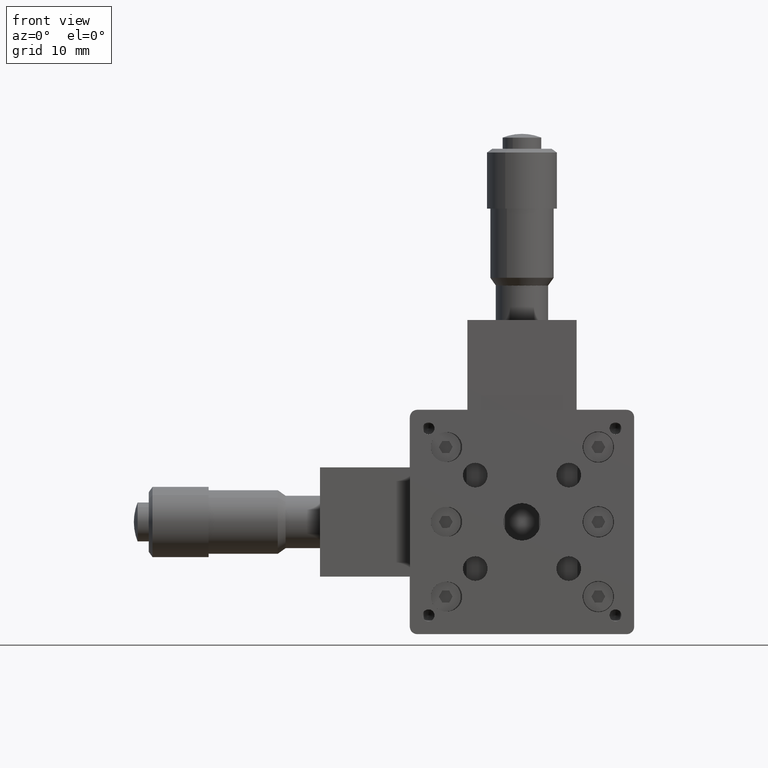
[diagram: clean part render]
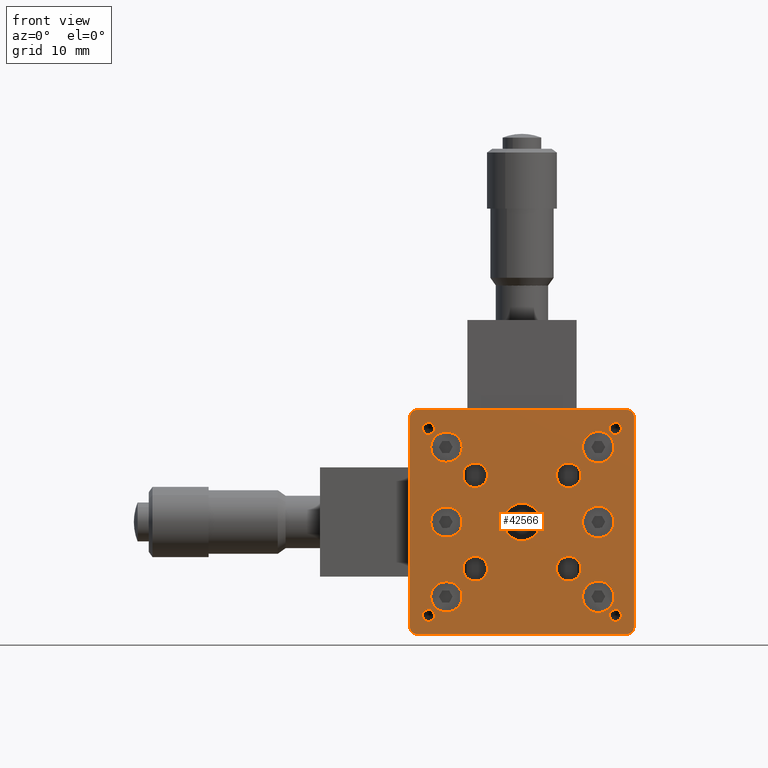
[diagram: same view with one face highlighted and labeled with its STEP entity id]
A machine part, front view. The second image highlights one B-rep face of the part: STEP entity #42566.
In plain terms, the highlighted planar face has unit normal (0, 1, -0).
Its self-contained STEP definition (entity closure, byte-faithful):
#23 = EDGE_LOOP ( 'NONE', ( #45067, #16349, #40978, #1449, #48845 ) ) ;
#196 = VERTEX_POINT ( 'NONE', #55357 ) ;
#272 = ORIENTED_EDGE ( 'NONE', *, *, #17197, .F. ) ;
#352 = CIRCLE ( 'NONE', #31244, 2.000000000000001800 ) ;
#366 = DIRECTION ( 'NONE',  ( -0.9996907414091207300, 3.995566843021196200E-015, 0.02486808277456444400 ) ) ;
#411 = CIRCLE ( 'NONE', #49605, 2.100000000000001000 ) ;
#438 = CIRCLE ( 'NONE', #27178, 0.7999999999999899400 ) ;
#726 = DIRECTION ( 'NONE',  ( 1.000000000000000000, -4.112451120382344100E-015, 0.0000000000000000000 ) ) ;
#735 = AXIS2_PLACEMENT_3D ( 'NONE', #38163, #33593, #25207 ) ;
#856 = VECTOR ( 'NONE', #366, 1000.000000000000000 ) ;
#954 = CIRCLE ( 'NONE', #47983, 1.649999999999989900 ) ;
#995 = ORIENTED_EDGE ( 'NONE', *, *, #34693, .F. ) ;
#1033 = VERTEX_POINT ( 'NONE', #40115 ) ;
#1141 = VERTEX_POINT ( 'NONE', #36163 ) ;
#1396 = VERTEX_POINT ( 'NONE', #52700 ) ;
#1406 = EDGE_CURVE ( 'NONE', #50541, #23847, #4537, .T. ) ;
#1449 = ORIENTED_EDGE ( 'NONE', *, *, #32207, .F. ) ;
#1508 = CARTESIAN_POINT ( 'NONE',  ( -9.800992561957983200, -6.245004513516505500E-014, 8.009925619580030800 ) ) ;
#1532 = CARTESIAN_POINT ( 'NONE',  ( -13.99999999999998000, -4.683753385137379200E-014, -15.00000000000001400 ) ) ;
#1822 = EDGE_CURVE ( 'NONE', #39451, #21439, #31661, .T. ) ;
#1902 = AXIS2_PLACEMENT_3D ( 'NONE', #51779, #4389, #48174 ) ;
#2013 = VERTEX_POINT ( 'NONE', #27249 ) ;
#2101 = CIRCLE ( 'NONE', #9898, 2.100000000000001000 ) ;
#2462 = LINE ( 'NONE', #4999, #51850 ) ;
#2536 = CARTESIAN_POINT ( 'NONE',  ( 6.250000000000034600, -1.162264728904460800E-013, 6.250000000000007100 ) ) ;
#2753 = DIRECTION ( 'NONE',  ( 2.664535259100375700E-015, -1.000000000000000000, 2.667395143078008400E-029 ) ) ;
#2771 = VECTOR ( 'NONE', #16659, 1000.000000000000000 ) ;
#2876 = EDGE_CURVE ( 'NONE', #1033, #6352, #48559, .T. ) ;
#3043 = CIRCLE ( 'NONE', #48805, 1.649999999999989900 ) ;
#3252 = CARTESIAN_POINT ( 'NONE',  ( -13.99999999999997900, -4.683753385137379200E-014, 14.00000000000001200 ) ) ;
#3683 = DIRECTION ( 'NONE',  ( 2.548887027368588000E-015, -1.000000000000000000, 2.667475390159024300E-029 ) ) ;
#3958 = CIRCLE ( 'NONE', #19397, 0.7999999999999899400 ) ;
#3985 = EDGE_LOOP ( 'NONE', ( #39808, #20516 ) ) ;
#4084 = DIRECTION ( 'NONE',  ( -1.000000000000000000, 4.112451120382349600E-015, 0.0000000000000000000 ) ) ;
#4190 = EDGE_CURVE ( 'NONE', #13506, #46286, #13105, .T. ) ;
#4195 = CARTESIAN_POINT ( 'NONE',  ( -10.19999999999998000, -6.245004513516505500E-014, 2.000000000000000900 ) ) ;
#4255 = DIRECTION ( 'NONE',  ( 2.548887027368588000E-015, -1.000000000000000000, 2.667475390159024300E-029 ) ) ;
#4389 = DIRECTION ( 'NONE',  ( 2.664535259100375700E-015, -1.000000000000000000, 2.667395143078008400E-029 ) ) ;
#4422 = CARTESIAN_POINT ( 'NONE',  ( -10.19999999999998000, -6.245004513516505500E-014, 10.00000000000000700 ) ) ;
#4537 = CIRCLE ( 'NONE', #18136, 2.499999999999990700 ) ;
#4693 = CARTESIAN_POINT ( 'NONE',  ( 14.00000000000004600, -1.474514954580286000E-013, -15.00000000000001400 ) ) ;
#4711 = CIRCLE ( 'NONE', #52469, 2.000000000000001800 ) ;
#4780 = CIRCLE ( 'NONE', #31853, 2.000000000000001800 ) ;
#4999 = CARTESIAN_POINT ( 'NONE',  ( -10.19999999999997800, -6.245004513516505500E-014, 8.000000000000007100 ) ) ;
#5043 = CARTESIAN_POINT ( 'NONE',  ( -13.99999999999998000, -4.683753385137379200E-014, -14.00000000000001200 ) ) ;
#5186 = EDGE_CURVE ( 'NONE', #43301, #45183, #21839, .T. ) ;
#5297 = ORIENTED_EDGE ( 'NONE', *, *, #7983, .F. ) ;
#5665 = PLANE ( 'NONE',  #5816 ) ;
#5816 = AXIS2_PLACEMENT_3D ( 'NONE', #45084, #36807, #40395 ) ;
#5841 = EDGE_CURVE ( 'NONE', #35988, #42162, #27684, .T. ) ;
#6248 = AXIS2_PLACEMENT_3D ( 'NONE', #39551, #26638, #48415 ) ;
#6352 = VERTEX_POINT ( 'NONE', #20278 ) ;
#6373 = LINE ( 'NONE', #18012, #33554 ) ;
#6412 = CARTESIAN_POINT ( 'NONE',  ( -10.19999999999998000, -6.245004513516505500E-014, 10.00000000000000700 ) ) ;
#6444 = ORIENTED_EDGE ( 'NONE', *, *, #55565, .F. ) ;
#6822 = EDGE_LOOP ( 'NONE', ( #23585, #50283 ) ) ;
#6891 = EDGE_CURVE ( 'NONE', #1141, #56171, #32955, .T. ) ;
#6967 = CIRCLE ( 'NONE', #20433, 0.7999999999999899400 ) ;
#7011 = FACE_BOUND ( 'NONE', #30240, .T. ) ;
#7107 = VERTEX_POINT ( 'NONE', #22316 ) ;
#7163 = ORIENTED_EDGE ( 'NONE', *, *, #38544, .F. ) ;
#7277 = CARTESIAN_POINT ( 'NONE',  ( -6.249999999999979600, -8.153200337090993300E-014, 6.250000000000007100 ) ) ;
#7292 = ORIENTED_EDGE ( 'NONE', *, *, #21866, .F. ) ;
#7471 = CARTESIAN_POINT ( 'NONE',  ( 10.20000000000003300, -1.318389841742373400E-013, 10.00000000000000700 ) ) ;
#7563 = EDGE_CURVE ( 'NONE', #42162, #55387, #2462, .T. ) ;
#7714 = EDGE_CURVE ( 'NONE', #21439, #39451, #411, .T. ) ;
#7822 = DIRECTION ( 'NONE',  ( 2.664535259100375700E-015, -1.000000000000000000, 2.667395143078008400E-029 ) ) ;
#7983 = EDGE_CURVE ( 'NONE', #53275, #13305, #6373, .T. ) ;
#8219 = VERTEX_POINT ( 'NONE', #50497 ) ;
#8342 = DIRECTION ( 'NONE',  ( 1.000000000000000000, -4.112451120382344100E-015, 0.0000000000000000000 ) ) ;
#8361 = FACE_BOUND ( 'NONE', #19133, .T. ) ;
#8735 = CIRCLE ( 'NONE', #26201, 2.000000000000001800 ) ;
#8902 = CARTESIAN_POINT ( 'NONE',  ( -10.19999999999998000, -6.245004513516505500E-014, -8.000000000000007100 ) ) ;
#8910 = CIRCLE ( 'NONE', #34159, 1.649999999999989900 ) ;
#9179 = VERTEX_POINT ( 'NONE', #27657 ) ;
#9440 = DIRECTION ( 'NONE',  ( 0.0000000000000000000, 2.988109489473547800E-029, -1.000000000000000000 ) ) ;
#9474 = EDGE_CURVE ( 'NONE', #48775, #17167, #27972, .T. ) ;
#9494 = DIRECTION ( 'NONE',  ( 2.664535259100375700E-015, -1.000000000000000000, 2.667395143078008400E-029 ) ) ;
#9533 = CARTESIAN_POINT ( 'NONE',  ( 14.00000000000004600, -1.474514954580286000E-013, -14.00000000000001200 ) ) ;
#9591 = CARTESIAN_POINT ( 'NONE',  ( -10.19999999999997800, -6.245004513516505500E-014, 12.00000000000001400 ) ) ;
#9709 = EDGE_LOOP ( 'NONE', ( #48722, #21597, #51011, #26748, #5297, #10655, #38330, #18675 ) ) ;
#9743 = VERTEX_POINT ( 'NONE', #32081 ) ;
#9898 = AXIS2_PLACEMENT_3D ( 'NONE', #53204, #35280, #14340 ) ;
#10001 = CIRCLE ( 'NONE', #25986, 1.649999999999989900 ) ;
#10059 = CARTESIAN_POINT ( 'NONE',  ( -12.49999999999999100, -5.030698080332739300E-014, 13.30000000000000400 ) ) ;
#10262 = DIRECTION ( 'NONE',  ( 2.664535259100375700E-015, -1.000000000000000000, 2.667395143078008400E-029 ) ) ;
#10288 = DIRECTION ( 'NONE',  ( 2.664535259100375700E-015, -1.000000000000000000, 2.667395143078008400E-029 ) ) ;
#10328 = ORIENTED_EDGE ( 'NONE', *, *, #29114, .F. ) ;
#10464 = CARTESIAN_POINT ( 'NONE',  ( 10.20000000000003300, -1.318389841742373400E-013, 2.811140603990517100E-028 ) ) ;
#10655 = ORIENTED_EDGE ( 'NONE', *, *, #50415, .T. ) ;
#10662 = EDGE_CURVE ( 'NONE', #43990, #21821, #10867, .T. ) ;
#10849 = CARTESIAN_POINT ( 'NONE',  ( 2.847981924214951700E-014, -9.887923813067794100E-014, -2.499999999999990700 ) ) ;
#10867 = CIRCLE ( 'NONE', #28692, 2.100000000000001000 ) ;
#11051 = EDGE_CURVE ( 'NONE', #34521, #1033, #20314, .T. ) ;
#11091 = FACE_BOUND ( 'NONE', #23650, .T. ) ;
#11176 = VECTOR ( 'NONE', #45226, 1000.000000000000000 ) ;
#11364 = EDGE_CURVE ( 'NONE', #17167, #1141, #14856, .T. ) ;
#11379 = EDGE_LOOP ( 'NONE', ( #36898, #53904 ) ) ;
#11455 = EDGE_CURVE ( 'NONE', #45183, #35988, #8735, .T. ) ;
#11508 = ORIENTED_EDGE ( 'NONE', *, *, #4190, .F. ) ;
#11719 = DIRECTION ( 'NONE',  ( 2.548887027368588000E-015, -1.000000000000000000, 2.667475390159024300E-029 ) ) ;
#11839 = CARTESIAN_POINT ( 'NONE',  ( 12.50000000000003900, -1.474514954580286000E-013, 13.30000000000000400 ) ) ;
#12151 = CIRCLE ( 'NONE', #35390, 1.649999999999989900 ) ;
#12167 = AXIS2_PLACEMENT_3D ( 'NONE', #21132, #4255, #4084 ) ;
#12401 = VERTEX_POINT ( 'NONE', #47331 ) ;
#12635 = DIRECTION ( 'NONE',  ( 0.0000000000000000000, 2.347800313157772200E-029, -1.000000000000000000 ) ) ;
#12789 = CARTESIAN_POINT ( 'NONE',  ( 6.250000000000034600, -1.162264728904460200E-013, -7.899999999999997700 ) ) ;
#12882 = LINE ( 'NONE', #25769, #2771 ) ;
#13105 = CIRCLE ( 'NONE', #1902, 0.7999999999999899400 ) ;
#13287 = EDGE_CURVE ( 'NONE', #30116, #25152, #3043, .T. ) ;
#13305 = VERTEX_POINT ( 'NONE', #1532 ) ;
#13506 = VERTEX_POINT ( 'NONE', #11839 ) ;
#13961 = CARTESIAN_POINT ( 'NONE',  ( -6.249999999999979600, -8.153200337090993300E-014, -6.250000000000007100 ) ) ;
#14145 = CARTESIAN_POINT ( 'NONE',  ( 10.20000000000003300, -1.318389841742372900E-013, -2.100000000000001000 ) ) ;
#14340 = DIRECTION ( 'NONE',  ( 0.0000000000000000000, 2.347800313157772200E-029, -1.000000000000000000 ) ) ;
#14443 = VERTEX_POINT ( 'NONE', #10059 ) ;
#14639 = EDGE_CURVE ( 'NONE', #49934, #24780, #6967, .T. ) ;
#14816 = CIRCLE ( 'NONE', #18337, 2.100000000000001000 ) ;
#14856 = CIRCLE ( 'NONE', #47208, 2.000000000000001800 ) ;
#14867 = DIRECTION ( 'NONE',  ( 2.548887027368588000E-015, -1.000000000000000000, 2.667475390159024300E-029 ) ) ;
#15005 = DIRECTION ( 'NONE',  ( 0.0000000000000000000, 2.347800313157772200E-029, -1.000000000000000000 ) ) ;
#15055 = CIRCLE ( 'NONE', #31937, 0.7999999999999899400 ) ;
#15074 = CARTESIAN_POINT ( 'NONE',  ( -6.249999999999984900, -8.153200337090990800E-014, 7.899999999999995900 ) ) ;
#15515 = DIRECTION ( 'NONE',  ( 0.0000000000000000000, 3.081487911019616000E-029, -1.000000000000000000 ) ) ;
#15739 = CIRCLE ( 'NONE', #16753, 1.649999999999989900 ) ;
#15808 = FACE_BOUND ( 'NONE', #3985, .T. ) ;
#16172 = EDGE_LOOP ( 'NONE', ( #21312, #55836, #42716, #24135, #41372 ) ) ;
#16349 = ORIENTED_EDGE ( 'NONE', *, *, #37029, .F. ) ;
#16498 = VERTEX_POINT ( 'NONE', #39308 ) ;
#16659 = DIRECTION ( 'NONE',  ( 1.000000000000000000, -3.996802888650564300E-015, 7.133644514010314600E-030 ) ) ;
#16753 = AXIS2_PLACEMENT_3D ( 'NONE', #2536, #25030, #37418 ) ;
#17167 = VERTEX_POINT ( 'NONE', #49227 ) ;
#17197 = EDGE_CURVE ( 'NONE', #50565, #7107, #39338, .T. ) ;
#17220 = CARTESIAN_POINT ( 'NONE',  ( 10.20000000000003300, -1.318389841742372900E-013, 7.900000000000005700 ) ) ;
#17460 = DIRECTION ( 'NONE',  ( 2.548887027368588000E-015, -1.000000000000000000, 2.667475390159024300E-029 ) ) ;
#17753 = AXIS2_PLACEMENT_3D ( 'NONE', #19486, #23683, #18745 ) ;
#18012 = CARTESIAN_POINT ( 'NONE',  ( -14.99999999999998000, -3.295974604355933500E-014, -15.00000000000001400 ) ) ;
#18136 = AXIS2_PLACEMENT_3D ( 'NONE', #27508, #40043, #36260 ) ;
#18218 = VERTEX_POINT ( 'NONE', #15074 ) ;
#18337 = AXIS2_PLACEMENT_3D ( 'NONE', #7471, #25111, #28734 ) ;
#18458 = AXIS2_PLACEMENT_3D ( 'NONE', #43166, #38669, #12635 ) ;
#18653 = DIRECTION ( 'NONE',  ( -1.000000000000000000, 4.112451120382349600E-015, -7.136726001921331400E-030 ) ) ;
#18662 = CARTESIAN_POINT ( 'NONE',  ( -12.49999999999998800, -5.030698080332740600E-014, -12.50000000000001400 ) ) ;
#18675 = ORIENTED_EDGE ( 'NONE', *, *, #2876, .T. ) ;
#18745 = DIRECTION ( 'NONE',  ( -1.000000000000000000, 4.112451120382349600E-015, -7.136726001921331400E-030 ) ) ;
#18903 = DIRECTION ( 'NONE',  ( 0.0000000000000000000, 2.988109489473547800E-029, -1.000000000000000000 ) ) ;
#19052 = CARTESIAN_POINT ( 'NONE',  ( 15.00000000000004600, -1.613292832658430600E-013, -15.00000000000001400 ) ) ;
#19133 = EDGE_LOOP ( 'NONE', ( #34673, #6444 ) ) ;
#19351 = CIRCLE ( 'NONE', #735, 0.7999999999999899400 ) ;
#19353 = AXIS2_PLACEMENT_3D ( 'NONE', #6412, #32425, #36818 ) ;
#19355 = CARTESIAN_POINT ( 'NONE',  ( 10.20000000000002800, -1.318389841742372900E-013, 2.099999999999999600 ) ) ;
#19397 = AXIS2_PLACEMENT_3D ( 'NONE', #51250, #7822, #46518 ) ;
#19486 = CARTESIAN_POINT ( 'NONE',  ( -10.19999999999998000, -6.245004513516505500E-014, 1.371146858696485200E-028 ) ) ;
#20077 = CARTESIAN_POINT ( 'NONE',  ( 12.50000000000004300, -1.439820485060749600E-013, -13.30000000000000400 ) ) ;
#20084 = CARTESIAN_POINT ( 'NONE',  ( 2.359013718669064300E-014, -9.887923813067795400E-014, 2.499999999999988500 ) ) ;
#20278 = CARTESIAN_POINT ( 'NONE',  ( 14.00000000000004600, -1.474514954580286000E-013, 15.00000000000001400 ) ) ;
#20314 = LINE ( 'NONE', #19052, #35338 ) ;
#20433 = AXIS2_PLACEMENT_3D ( 'NONE', #24245, #29196, #15515 ) ;
#20516 = ORIENTED_EDGE ( 'NONE', *, *, #54870, .F. ) ;
#20721 = VECTOR ( 'NONE', #48553, 1000.000000000000000 ) ;
#21093 = EDGE_CURVE ( 'NONE', #9743, #14443, #438, .T. ) ;
#21132 = CARTESIAN_POINT ( 'NONE',  ( -9.999999999999980500, -6.245004513516505500E-014, 10.00000000000000900 ) ) ;
#21197 = EDGE_CURVE ( 'NONE', #6352, #196, #47159, .T. ) ;
#21312 = ORIENTED_EDGE ( 'NONE', *, *, #9474, .F. ) ;
#21439 = VERTEX_POINT ( 'NONE', #37864 ) ;
#21597 = ORIENTED_EDGE ( 'NONE', *, *, #51163, .T. ) ;
#21821 = VERTEX_POINT ( 'NONE', #19355 ) ;
#21839 = LINE ( 'NONE', #30286, #856 ) ;
#21866 = EDGE_CURVE ( 'NONE', #24517, #8219, #19351, .T. ) ;
#21950 = CARTESIAN_POINT ( 'NONE',  ( 12.50000000000003900, -1.439820485060749900E-013, -11.70000000000002400 ) ) ;
#22213 = CARTESIAN_POINT ( 'NONE',  ( -10.00099256195798100, -6.245004513516505500E-014, -1.990074380419980700 ) ) ;
#22316 = CARTESIAN_POINT ( 'NONE',  ( -6.249999999999984900, -8.153200337090990800E-014, -4.600000000000019200 ) ) ;
#22501 = ORIENTED_EDGE ( 'NONE', *, *, #23937, .F. ) ;
#22503 = DIRECTION ( 'NONE',  ( 2.548887027368588000E-015, -1.000000000000000000, 2.667475390159024300E-029 ) ) ;
#22556 = CARTESIAN_POINT ( 'NONE',  ( -9.999999999999980500, -6.245004513516505500E-014, -10.00000000000000700 ) ) ;
#22666 = FACE_BOUND ( 'NONE', #54192, .T. ) ;
#22681 = CARTESIAN_POINT ( 'NONE',  ( -12.49999999999999100, -5.030698080332739300E-014, -11.70000000000002400 ) ) ;
#22737 = DIRECTION ( 'NONE',  ( -1.000000000000000000, 4.112451120382349600E-015, 0.0000000000000000000 ) ) ;
#23424 = EDGE_LOOP ( 'NONE', ( #7163, #27089 ) ) ;
#23464 = DIRECTION ( 'NONE',  ( 7.133644514010391700E-030, -2.667395143078006700E-029, 1.000000000000000000 ) ) ;
#23585 = ORIENTED_EDGE ( 'NONE', *, *, #34395, .F. ) ;
#23598 = CARTESIAN_POINT ( 'NONE',  ( -10.19999999999998000, -6.245004513516505500E-014, -10.00000000000000700 ) ) ;
#23623 = CARTESIAN_POINT ( 'NONE',  ( -14.99999999999998000, -3.295974604355933500E-014, 15.00000000000001400 ) ) ;
#23650 = EDGE_LOOP ( 'NONE', ( #29975, #37892 ) ) ;
#23683 = DIRECTION ( 'NONE',  ( 2.548887027368588000E-015, -1.000000000000000000, 2.667475390159024300E-029 ) ) ;
#23847 = VERTEX_POINT ( 'NONE', #20084 ) ;
#23937 = EDGE_CURVE ( 'NONE', #7107, #50565, #8910, .T. ) ;
#23993 = FACE_BOUND ( 'NONE', #40680, .T. ) ;
#24135 = ORIENTED_EDGE ( 'NONE', *, *, #6891, .F. ) ;
#24245 = CARTESIAN_POINT ( 'NONE',  ( 12.50000000000004300, -1.439820485060749900E-013, -12.50000000000001400 ) ) ;
#24517 = VERTEX_POINT ( 'NONE', #22681 ) ;
#24586 = EDGE_CURVE ( 'NONE', #12401, #13305, #48883, .T. ) ;
#24780 = VERTEX_POINT ( 'NONE', #20077 ) ;
#24840 = VERTEX_POINT ( 'NONE', #17220 ) ;
#24912 = EDGE_CURVE ( 'NONE', #41600, #44254, #12882, .T. ) ;
#25030 = DIRECTION ( 'NONE',  ( 2.664535259100375700E-015, -1.000000000000000000, 2.667395143078008400E-029 ) ) ;
#25111 = DIRECTION ( 'NONE',  ( 2.664535259100375700E-015, -1.000000000000000000, 2.667395143078008400E-029 ) ) ;
#25152 = VERTEX_POINT ( 'NONE', #27679 ) ;
#25207 = DIRECTION ( 'NONE',  ( 0.0000000000000000000, 2.311115933264712200E-029, -1.000000000000000000 ) ) ;
#25692 = EDGE_LOOP ( 'NONE', ( #50312, #38681, #37427, #55595, #10328 ) ) ;
#25694 = DIRECTION ( 'NONE',  ( 0.0000000000000000000, 2.988109489473547800E-029, -1.000000000000000000 ) ) ;
#25769 = CARTESIAN_POINT ( 'NONE',  ( -10.19999999999997800, -6.245004513516505500E-014, -12.00000000000001400 ) ) ;
#25965 = DIRECTION ( 'NONE',  ( 2.664535259100375700E-015, -1.000000000000000000, 2.667395143078008400E-029 ) ) ;
#25986 = AXIS2_PLACEMENT_3D ( 'NONE', #47123, #51480, #25694 ) ;
#26201 = AXIS2_PLACEMENT_3D ( 'NONE', #4422, #26410, #30221 ) ;
#26410 = DIRECTION ( 'NONE',  ( 2.548887027368588000E-015, -1.000000000000000000, 2.667475390159024300E-029 ) ) ;
#26477 = DIRECTION ( 'NONE',  ( 1.000000000000000000, -4.112451120382349600E-015, 0.0000000000000000000 ) ) ;
#26561 = DIRECTION ( 'NONE',  ( -1.000000000000000000, 4.112451120382351200E-015, -7.136726001921334200E-030 ) ) ;
#26579 = AXIS2_PLACEMENT_3D ( 'NONE', #18662, #53173, #44266 ) ;
#26638 = DIRECTION ( 'NONE',  ( 2.664535259100375700E-015, -1.000000000000000000, 2.667395143078008400E-029 ) ) ;
#26748 = ORIENTED_EDGE ( 'NONE', *, *, #24586, .T. ) ;
#26994 = DIRECTION ( 'NONE',  ( 2.664535259100375700E-015, -1.000000000000000000, 2.667395143078008400E-029 ) ) ;
#27089 = ORIENTED_EDGE ( 'NONE', *, *, #48548, .F. ) ;
#27178 = AXIS2_PLACEMENT_3D ( 'NONE', #34170, #50812, #29228 ) ;
#27249 = CARTESIAN_POINT ( 'NONE',  ( -12.19999999999998000, -6.754781918990222800E-014, -10.00000000000000700 ) ) ;
#27414 = FACE_BOUND ( 'NONE', #45071, .T. ) ;
#27428 = VERTEX_POINT ( 'NONE', #12789 ) ;
#27508 = CARTESIAN_POINT ( 'NONE',  ( 2.847981924214953500E-014, -9.887923813067800400E-014, 2.093056841816695900E-028 ) ) ;
#27657 = CARTESIAN_POINT ( 'NONE',  ( 6.250000000000030200, -1.162264728904460500E-013, -4.600000000000019200 ) ) ;
#27679 = CARTESIAN_POINT ( 'NONE',  ( 6.250000000000034600, -1.162264728904460200E-013, 4.600000000000017400 ) ) ;
#27684 = CIRCLE ( 'NONE', #19353, 2.000000000000001800 ) ;
#27932 = CARTESIAN_POINT ( 'NONE',  ( 15.00000000000004600, -1.613292832658430600E-013, -14.00000000000001200 ) ) ;
#27972 = LINE ( 'NONE', #22213, #55056 ) ;
#28102 = FACE_BOUND ( 'NONE', #23, .T. ) ;
#28378 = DIRECTION ( 'NONE',  ( 0.0000000000000000000, 2.988109489473547800E-029, -1.000000000000000000 ) ) ;
#28630 = DIRECTION ( 'NONE',  ( -1.000000000000000000, 4.112451120382349600E-015, 0.0000000000000000000 ) ) ;
#28692 = AXIS2_PLACEMENT_3D ( 'NONE', #10464, #10288, #36161 ) ;
#28734 = DIRECTION ( 'NONE',  ( 0.0000000000000000000, 2.347800313157772200E-029, -1.000000000000000000 ) ) ;
#28775 = ORIENTED_EDGE ( 'NONE', *, *, #31889, .F. ) ;
#29114 = EDGE_CURVE ( 'NONE', #55387, #43301, #47442, .T. ) ;
#29196 = DIRECTION ( 'NONE',  ( 2.664535259100375700E-015, -1.000000000000000000, 2.667395143078008400E-029 ) ) ;
#29228 = DIRECTION ( 'NONE',  ( 0.0000000000000000000, 2.311115933264712200E-029, -1.000000000000000000 ) ) ;
#29468 = FACE_BOUND ( 'NONE', #16172, .T. ) ;
#29669 = CARTESIAN_POINT ( 'NONE',  ( -9.999999999999980500, -6.245004513516505500E-014, 1.386072815765486300E-028 ) ) ;
#29975 = ORIENTED_EDGE ( 'NONE', *, *, #1822, .F. ) ;
#30116 = VERTEX_POINT ( 'NONE', #47286 ) ;
#30221 = DIRECTION ( 'NONE',  ( -1.000000000000000000, 4.112451120382349600E-015, 0.0000000000000000000 ) ) ;
#30240 = EDGE_LOOP ( 'NONE', ( #272, #22501 ) ) ;
#30286 = CARTESIAN_POINT ( 'NONE',  ( -10.19999999999997800, -6.245004513516505500E-014, 12.00000000000001400 ) ) ;
#30430 = AXIS2_PLACEMENT_3D ( 'NONE', #9533, #52595, #726 ) ;
#30493 = ORIENTED_EDGE ( 'NONE', *, *, #47030, .F. ) ;
#30536 = CARTESIAN_POINT ( 'NONE',  ( -9.800992561957983200, -6.245004513516505500E-014, 11.99007438041999400 ) ) ;
#31242 = ORIENTED_EDGE ( 'NONE', *, *, #10662, .F. ) ;
#31244 = AXIS2_PLACEMENT_3D ( 'NONE', #32814, #50590, #28630 ) ;
#31433 = DIRECTION ( 'NONE',  ( 2.664535259100375700E-015, -1.000000000000000000, 2.667395143078008400E-029 ) ) ;
#31611 = LINE ( 'NONE', #8902, #20721 ) ;
#31661 = CIRCLE ( 'NONE', #18458, 2.100000000000001000 ) ;
#31853 = AXIS2_PLACEMENT_3D ( 'NONE', #53540, #37297, #18653 ) ;
#31889 = EDGE_CURVE ( 'NONE', #21821, #43990, #42512, .T. ) ;
#31937 = AXIS2_PLACEMENT_3D ( 'NONE', #40457, #9494, #35375 ) ;
#32052 = CIRCLE ( 'NONE', #46410, 1.649999999999989900 ) ;
#32081 = CARTESIAN_POINT ( 'NONE',  ( -12.49999999999998800, -5.030698080332738700E-014, 11.70000000000002400 ) ) ;
#32207 = EDGE_CURVE ( 'NONE', #41358, #52689, #31611, .T. ) ;
#32425 = DIRECTION ( 'NONE',  ( 2.548887027368588000E-015, -1.000000000000000000, 2.667475390159024300E-029 ) ) ;
#32814 = CARTESIAN_POINT ( 'NONE',  ( -10.19999999999998000, -6.245004513516505500E-014, -10.00000000000000700 ) ) ;
#32846 = FACE_OUTER_BOUND ( 'NONE', #9709, .T. ) ;
#32955 = LINE ( 'NONE', #47708, #53269 ) ;
#33032 = CARTESIAN_POINT ( 'NONE',  ( -10.00099256195798100, -6.245004513516505500E-014, -1.990074380419980700 ) ) ;
#33370 = EDGE_CURVE ( 'NONE', #52689, #2013, #352, .T. ) ;
#33554 = VECTOR ( 'NONE', #26561, 1000.000000000000000 ) ;
#33593 = DIRECTION ( 'NONE',  ( 2.664535259100375700E-015, -1.000000000000000000, 2.667395143078008400E-029 ) ) ;
#34017 = ORIENTED_EDGE ( 'NONE', *, *, #48437, .F. ) ;
#34044 = DIRECTION ( 'NONE',  ( -1.000000000000000000, 4.112451120382349600E-015, -7.136726001921331400E-030 ) ) ;
#34159 = AXIS2_PLACEMENT_3D ( 'NONE', #47768, #25965, #9440 ) ;
#34170 = CARTESIAN_POINT ( 'NONE',  ( -12.49999999999998800, -5.030698080332740600E-014, 12.50000000000001400 ) ) ;
#34222 = FACE_BOUND ( 'NONE', #11379, .T. ) ;
#34395 = EDGE_CURVE ( 'NONE', #24780, #49934, #43627, .T. ) ;
#34521 = VERTEX_POINT ( 'NONE', #27932 ) ;
#34673 = ORIENTED_EDGE ( 'NONE', *, *, #43120, .F. ) ;
#34693 = EDGE_CURVE ( 'NONE', #25152, #30116, #15739, .T. ) ;
#35280 = DIRECTION ( 'NONE',  ( 2.664535259100375700E-015, -1.000000000000000000, 2.667395143078008400E-029 ) ) ;
#35338 = VECTOR ( 'NONE', #36568, 1000.000000000000000 ) ;
#35375 = DIRECTION ( 'NONE',  ( 0.0000000000000000000, 3.081487911019616000E-029, -1.000000000000000000 ) ) ;
#35390 = AXIS2_PLACEMENT_3D ( 'NONE', #7277, #55043, #28378 ) ;
#35947 = CIRCLE ( 'NONE', #30430, 1.000000000000000900 ) ;
#35952 = CARTESIAN_POINT ( 'NONE',  ( 12.50000000000004300, -1.439820485060749900E-013, -12.50000000000001400 ) ) ;
#35988 = VERTEX_POINT ( 'NONE', #39825 ) ;
#36033 = DIRECTION ( 'NONE',  ( 0.0000000000000000000, 2.988109489473547800E-029, -1.000000000000000000 ) ) ;
#36053 = EDGE_CURVE ( 'NONE', #44254, #41358, #39438, .T. ) ;
#36143 = CARTESIAN_POINT ( 'NONE',  ( -10.19999999999997800, -6.245004513516505500E-014, -12.00000000000001400 ) ) ;
#36161 = DIRECTION ( 'NONE',  ( 0.0000000000000000000, 2.347800313157772200E-029, -1.000000000000000000 ) ) ;
#36163 = CARTESIAN_POINT ( 'NONE',  ( -9.999999999999978700, -6.245004513516505500E-014, 2.000000000000000900 ) ) ;
#36240 = DIRECTION ( 'NONE',  ( 2.664535259100375700E-015, -1.000000000000000000, 2.667395143078008400E-029 ) ) ;
#36260 = DIRECTION ( 'NONE',  ( -7.395570986447013700E-030, 2.465190328815671100E-029, -1.000000000000000000 ) ) ;
#36329 = DIRECTION ( 'NONE',  ( 2.664535259100375700E-015, -1.000000000000000000, 2.667395143078008400E-029 ) ) ;
#36568 = DIRECTION ( 'NONE',  ( 7.133644514010391700E-030, -2.667395143078006700E-029, 1.000000000000000000 ) ) ;
#36807 = DIRECTION ( 'NONE',  ( 4.112451120382351200E-015, 1.000000000000000000, -2.667475390159019800E-029 ) ) ;
#36818 = DIRECTION ( 'NONE',  ( -1.000000000000000000, 4.112451120382349600E-015, 0.0000000000000000000 ) ) ;
#36898 = ORIENTED_EDGE ( 'NONE', *, *, #21093, .F. ) ;
#36956 = FACE_BOUND ( 'NONE', #51442, .T. ) ;
#37029 = EDGE_CURVE ( 'NONE', #2013, #41600, #4711, .T. ) ;
#37297 = DIRECTION ( 'NONE',  ( 2.548887027368588000E-015, -1.000000000000000000, 2.667475390159024300E-029 ) ) ;
#37418 = DIRECTION ( 'NONE',  ( 0.0000000000000000000, 2.988109489473547800E-029, -1.000000000000000000 ) ) ;
#37427 = ORIENTED_EDGE ( 'NONE', *, *, #11455, .F. ) ;
#37858 = CARTESIAN_POINT ( 'NONE',  ( -9.999999999999978700, -6.245004513516505500E-014, -12.00000000000001400 ) ) ;
#37864 = CARTESIAN_POINT ( 'NONE',  ( 10.20000000000002800, -1.318389841742372900E-013, -7.900000000000007500 ) ) ;
#37892 = ORIENTED_EDGE ( 'NONE', *, *, #7714, .F. ) ;
#37967 = CARTESIAN_POINT ( 'NONE',  ( -6.249999999999979600, -8.153200337090993300E-014, 6.250000000000007100 ) ) ;
#38163 = CARTESIAN_POINT ( 'NONE',  ( -12.49999999999998800, -5.030698080332740600E-014, -12.50000000000001400 ) ) ;
#38330 = ORIENTED_EDGE ( 'NONE', *, *, #11051, .T. ) ;
#38333 = EDGE_CURVE ( 'NONE', #12401, #16498, #52769, .T. ) ;
#38544 = EDGE_CURVE ( 'NONE', #27428, #9179, #10001, .T. ) ;
#38669 = DIRECTION ( 'NONE',  ( 2.664535259100375700E-015, -1.000000000000000000, 2.667395143078008400E-029 ) ) ;
#38681 = ORIENTED_EDGE ( 'NONE', *, *, #5841, .F. ) ;
#38961 = FACE_BOUND ( 'NONE', #40497, .T. ) ;
#39308 = CARTESIAN_POINT ( 'NONE',  ( -14.99999999999998000, -3.295974604355933500E-014, 14.00000000000001200 ) ) ;
#39338 = CIRCLE ( 'NONE', #52175, 1.649999999999989900 ) ;
#39438 = CIRCLE ( 'NONE', #40812, 2.000000000000001800 ) ;
#39451 = VERTEX_POINT ( 'NONE', #51568 ) ;
#39551 = CARTESIAN_POINT ( 'NONE',  ( 2.847981924214953500E-014, -9.887923813067800400E-014, 2.093056841816695900E-028 ) ) ;
#39599 = AXIS2_PLACEMENT_3D ( 'NONE', #3252, #11719, #50784 ) ;
#39808 = ORIENTED_EDGE ( 'NONE', *, *, #1406, .F. ) ;
#39825 = CARTESIAN_POINT ( 'NONE',  ( -12.19999999999998000, -6.754781918990222800E-014, 10.00000000000000700 ) ) ;
#39853 = VERTEX_POINT ( 'NONE', #49650 ) ;
#40013 = CARTESIAN_POINT ( 'NONE',  ( 6.250000000000034600, -1.162264728904460800E-013, 6.250000000000007100 ) ) ;
#40043 = DIRECTION ( 'NONE',  ( 2.664535259100375700E-015, -1.000000000000000000, 2.667395143078008400E-029 ) ) ;
#40115 = CARTESIAN_POINT ( 'NONE',  ( 15.00000000000004600, -1.613292832658430600E-013, 14.00000000000001200 ) ) ;
#40391 = AXIS2_PLACEMENT_3D ( 'NONE', #5043, #22503, #26477 ) ;
#40395 = DIRECTION ( 'NONE',  ( 1.000000000000000000, -4.112451120382351200E-015, 7.136726001921334200E-030 ) ) ;
#40433 = DIRECTION ( 'NONE',  ( 1.000000000000000000, -3.996802888650564300E-015, 7.133644514010314600E-030 ) ) ;
#40457 = CARTESIAN_POINT ( 'NONE',  ( 12.50000000000004300, -1.474514954580286000E-013, 12.50000000000001400 ) ) ;
#40497 = EDGE_LOOP ( 'NONE', ( #995, #41362 ) ) ;
#40642 = DIRECTION ( 'NONE',  ( 0.0000000000000000000, 2.988109489473547800E-029, -1.000000000000000000 ) ) ;
#40680 = EDGE_LOOP ( 'NONE', ( #41662, #7292 ) ) ;
#40812 = AXIS2_PLACEMENT_3D ( 'NONE', #22556, #48716, #22737 ) ;
#40978 = ORIENTED_EDGE ( 'NONE', *, *, #33370, .F. ) ;
#41020 = CARTESIAN_POINT ( 'NONE',  ( 10.20000000000003300, -1.318389841742373400E-013, -10.00000000000000700 ) ) ;
#41025 = DIRECTION ( 'NONE',  ( 0.0000000000000000000, 2.347800313157772200E-029, -1.000000000000000000 ) ) ;
#41033 = CARTESIAN_POINT ( 'NONE',  ( -6.249999999999979600, -8.153200337090988300E-014, -7.899999999999997700 ) ) ;
#41321 = EDGE_CURVE ( 'NONE', #56171, #53831, #49268, .T. ) ;
#41358 = VERTEX_POINT ( 'NONE', #49092 ) ;
#41362 = ORIENTED_EDGE ( 'NONE', *, *, #13287, .F. ) ;
#41372 = ORIENTED_EDGE ( 'NONE', *, *, #11364, .F. ) ;
#41600 = VERTEX_POINT ( 'NONE', #36143 ) ;
#41662 = ORIENTED_EDGE ( 'NONE', *, *, #43030, .F. ) ;
#42162 = VERTEX_POINT ( 'NONE', #55152 ) ;
#42164 = CIRCLE ( 'NONE', #6248, 2.499999999999990700 ) ;
#42512 = CIRCLE ( 'NONE', #55850, 2.100000000000001000 ) ;
#42566 = ADVANCED_FACE ( 'NONE', ( #53162, #29468, #28102, #48435, #23993, #34222, #27414, #11091, #36956, #22666, #7011, #8361, #38961, #55870, #15808, #32846 ), #5665, .F. ) ;
#42659 = DIRECTION ( 'NONE',  ( 0.0000000000000000000, 2.988109489473547800E-029, -1.000000000000000000 ) ) ;
#42716 = ORIENTED_EDGE ( 'NONE', *, *, #41321, .F. ) ;
#43030 = EDGE_CURVE ( 'NONE', #8219, #24517, #51751, .T. ) ;
#43120 = EDGE_CURVE ( 'NONE', #39853, #18218, #954, .T. ) ;
#43166 = CARTESIAN_POINT ( 'NONE',  ( 10.20000000000003300, -1.318389841742373400E-013, -10.00000000000000700 ) ) ;
#43263 = CARTESIAN_POINT ( 'NONE',  ( 14.00000000000004600, -1.474514954580286000E-013, 14.00000000000001200 ) ) ;
#43301 = VERTEX_POINT ( 'NONE', #30536 ) ;
#43627 = CIRCLE ( 'NONE', #50156, 0.7999999999999899400 ) ;
#43990 = VERTEX_POINT ( 'NONE', #14145 ) ;
#44254 = VERTEX_POINT ( 'NONE', #37858 ) ;
#44266 = DIRECTION ( 'NONE',  ( 0.0000000000000000000, 2.311115933264712200E-029, -1.000000000000000000 ) ) ;
#44344 = CARTESIAN_POINT ( 'NONE',  ( 12.50000000000004300, -1.474514954580285800E-013, 11.70000000000002400 ) ) ;
#44648 = DIRECTION ( 'NONE',  ( -1.000000000000000000, 4.112451120382349600E-015, 0.0000000000000000000 ) ) ;
#44705 = AXIS2_PLACEMENT_3D ( 'NONE', #43263, #17460, #8342 ) ;
#44789 = DIRECTION ( 'NONE',  ( 0.9996907414091204000, -3.995566843021195400E-015, 0.02486808277457312800 ) ) ;
#45066 = CARTESIAN_POINT ( 'NONE',  ( -14.99999999999998000, -3.295974604355933500E-014, -15.00000000000001400 ) ) ;
#45067 = ORIENTED_EDGE ( 'NONE', *, *, #24912, .F. ) ;
#45071 = EDGE_LOOP ( 'NONE', ( #34017, #11508 ) ) ;
#45084 = CARTESIAN_POINT ( 'NONE',  ( -14.99999999999998000, -3.295974604355933500E-014, -15.00000000000001400 ) ) ;
#45183 = VERTEX_POINT ( 'NONE', #9591 ) ;
#45226 = DIRECTION ( 'NONE',  ( -1.000000000000000000, 4.112451120382351200E-015, -7.136726001921334200E-030 ) ) ;
#46048 = CIRCLE ( 'NONE', #39599, 1.000000000000000900 ) ;
#46286 = VERTEX_POINT ( 'NONE', #44344 ) ;
#46410 = AXIS2_PLACEMENT_3D ( 'NONE', #49876, #10262, #40642 ) ;
#46518 = DIRECTION ( 'NONE',  ( 0.0000000000000000000, 2.311115933264712200E-029, -1.000000000000000000 ) ) ;
#47030 = EDGE_CURVE ( 'NONE', #24840, #1396, #14816, .T. ) ;
#47115 = EDGE_CURVE ( 'NONE', #14443, #9743, #3958, .T. ) ;
#47123 = CARTESIAN_POINT ( 'NONE',  ( 6.250000000000034600, -1.162264728904460800E-013, -6.250000000000007100 ) ) ;
#47159 = LINE ( 'NONE', #23623, #11176 ) ;
#47208 = AXIS2_PLACEMENT_3D ( 'NONE', #29669, #3683, #34044 ) ;
#47286 = CARTESIAN_POINT ( 'NONE',  ( 6.250000000000030200, -1.162264728904460500E-013, 7.899999999999995900 ) ) ;
#47331 = CARTESIAN_POINT ( 'NONE',  ( -14.99999999999998000, -3.295974604355933500E-014, -14.00000000000001200 ) ) ;
#47442 = CIRCLE ( 'NONE', #12167, 2.000000000000001800 ) ;
#47593 = CARTESIAN_POINT ( 'NONE',  ( -10.19999999999998000, -6.245004513516505500E-014, -8.000000000000007100 ) ) ;
#47708 = CARTESIAN_POINT ( 'NONE',  ( -10.19999999999998000, -6.245004513516505500E-014, 2.000000000000000900 ) ) ;
#47768 = CARTESIAN_POINT ( 'NONE',  ( -6.249999999999979600, -8.153200337090993300E-014, -6.250000000000007100 ) ) ;
#47983 = AXIS2_PLACEMENT_3D ( 'NONE', #37967, #50791, #42659 ) ;
#48029 = VECTOR ( 'NONE', #23464, 1000.000000000000000 ) ;
#48081 = DIRECTION ( 'NONE',  ( -1.000000000000000000, 3.996802888650564300E-015, -7.133644514010314600E-030 ) ) ;
#48174 = DIRECTION ( 'NONE',  ( 0.0000000000000000000, 3.081487911019616000E-029, -1.000000000000000000 ) ) ;
#48415 = DIRECTION ( 'NONE',  ( -7.395570986447013700E-030, 2.465190328815671100E-029, -1.000000000000000000 ) ) ;
#48435 = FACE_BOUND ( 'NONE', #6822, .T. ) ;
#48437 = EDGE_CURVE ( 'NONE', #46286, #13506, #15055, .T. ) ;
#48548 = EDGE_CURVE ( 'NONE', #9179, #27428, #32052, .T. ) ;
#48553 = DIRECTION ( 'NONE',  ( -1.000000000000000000, 3.996802888650564300E-015, -7.133644514010314600E-030 ) ) ;
#48559 = CIRCLE ( 'NONE', #44705, 1.000000000000000900 ) ;
#48716 = DIRECTION ( 'NONE',  ( 2.548887027368588000E-015, -1.000000000000000000, 2.667475390159024300E-029 ) ) ;
#48722 = ORIENTED_EDGE ( 'NONE', *, *, #21197, .T. ) ;
#48775 = VERTEX_POINT ( 'NONE', #33032 ) ;
#48805 = AXIS2_PLACEMENT_3D ( 'NONE', #40013, #36240, #18903 ) ;
#48845 = ORIENTED_EDGE ( 'NONE', *, *, #36053, .F. ) ;
#48883 = CIRCLE ( 'NONE', #40391, 1.000000000000000900 ) ;
#49092 = CARTESIAN_POINT ( 'NONE',  ( -9.999999999999980500, -6.245004513516505500E-014, -8.000000000000007100 ) ) ;
#49227 = CARTESIAN_POINT ( 'NONE',  ( -9.800992561957983200, -6.245004513516505500E-014, -1.990074380419980700 ) ) ;
#49268 = CIRCLE ( 'NONE', #17753, 2.000000000000001800 ) ;
#49550 = CARTESIAN_POINT ( 'NONE',  ( 10.20000000000003300, -1.318389841742373400E-013, 2.811140603990517100E-028 ) ) ;
#49605 = AXIS2_PLACEMENT_3D ( 'NONE', #41020, #36329, #15005 ) ;
#49618 = EDGE_CURVE ( 'NONE', #53831, #48775, #4780, .T. ) ;
#49650 = CARTESIAN_POINT ( 'NONE',  ( -6.249999999999979600, -8.153200337090988300E-014, 4.600000000000017400 ) ) ;
#49876 = CARTESIAN_POINT ( 'NONE',  ( 6.250000000000034600, -1.162264728904460800E-013, -6.250000000000007100 ) ) ;
#49934 = VERTEX_POINT ( 'NONE', #21950 ) ;
#50156 = AXIS2_PLACEMENT_3D ( 'NONE', #35952, #26994, #53499 ) ;
#50283 = ORIENTED_EDGE ( 'NONE', *, *, #14639, .F. ) ;
#50312 = ORIENTED_EDGE ( 'NONE', *, *, #7563, .F. ) ;
#50415 = EDGE_CURVE ( 'NONE', #53275, #34521, #35947, .T. ) ;
#50497 = CARTESIAN_POINT ( 'NONE',  ( -12.49999999999998800, -5.030698080332738700E-014, -13.30000000000000400 ) ) ;
#50541 = VERTEX_POINT ( 'NONE', #10849 ) ;
#50565 = VERTEX_POINT ( 'NONE', #41033 ) ;
#50590 = DIRECTION ( 'NONE',  ( 2.548887027368588000E-015, -1.000000000000000000, 2.667475390159024300E-029 ) ) ;
#50784 = DIRECTION ( 'NONE',  ( 1.000000000000000000, -4.112451120382349600E-015, 0.0000000000000000000 ) ) ;
#50791 = DIRECTION ( 'NONE',  ( 2.664535259100375700E-015, -1.000000000000000000, 2.667395143078008400E-029 ) ) ;
#50812 = DIRECTION ( 'NONE',  ( 2.664535259100375700E-015, -1.000000000000000000, 2.667395143078008400E-029 ) ) ;
#51011 = ORIENTED_EDGE ( 'NONE', *, *, #38333, .F. ) ;
#51163 = EDGE_CURVE ( 'NONE', #196, #16498, #46048, .T. ) ;
#51250 = CARTESIAN_POINT ( 'NONE',  ( -12.49999999999998800, -5.030698080332740600E-014, 12.50000000000001400 ) ) ;
#51442 = EDGE_LOOP ( 'NONE', ( #31242, #28775 ) ) ;
#51480 = DIRECTION ( 'NONE',  ( 2.664535259100375700E-015, -1.000000000000000000, 2.667395143078008400E-029 ) ) ;
#51540 = ORIENTED_EDGE ( 'NONE', *, *, #55324, .F. ) ;
#51568 = CARTESIAN_POINT ( 'NONE',  ( 10.20000000000003300, -1.318389841742372900E-013, -12.10000000000000900 ) ) ;
#51751 = CIRCLE ( 'NONE', #26579, 0.7999999999999899400 ) ;
#51779 = CARTESIAN_POINT ( 'NONE',  ( 12.50000000000004300, -1.474514954580286000E-013, 12.50000000000001400 ) ) ;
#51850 = VECTOR ( 'NONE', #44789, 1000.000000000000200 ) ;
#52175 = AXIS2_PLACEMENT_3D ( 'NONE', #13961, #31433, #36033 ) ;
#52469 = AXIS2_PLACEMENT_3D ( 'NONE', #23598, #14867, #44648 ) ;
#52582 = CARTESIAN_POINT ( 'NONE',  ( -12.19999999999998000, -6.754781918990222800E-014, 8.352912513374260500E-029 ) ) ;
#52595 = DIRECTION ( 'NONE',  ( 2.548887027368588000E-015, -1.000000000000000000, 2.667475390159024300E-029 ) ) ;
#52689 = VERTEX_POINT ( 'NONE', #47593 ) ;
#52700 = CARTESIAN_POINT ( 'NONE',  ( 10.20000000000002800, -1.318389841742372900E-013, 12.10000000000000700 ) ) ;
#52769 = LINE ( 'NONE', #45066, #48029 ) ;
#53162 = FACE_BOUND ( 'NONE', #25692, .T. ) ;
#53173 = DIRECTION ( 'NONE',  ( 2.664535259100375700E-015, -1.000000000000000000, 2.667395143078008400E-029 ) ) ;
#53204 = CARTESIAN_POINT ( 'NONE',  ( 10.20000000000003300, -1.318389841742373400E-013, 10.00000000000000700 ) ) ;
#53269 = VECTOR ( 'NONE', #48081, 1000.000000000000000 ) ;
#53275 = VERTEX_POINT ( 'NONE', #4693 ) ;
#53499 = DIRECTION ( 'NONE',  ( 0.0000000000000000000, 3.081487911019616000E-029, -1.000000000000000000 ) ) ;
#53540 = CARTESIAN_POINT ( 'NONE',  ( -10.19999999999998000, -6.245004513516505500E-014, 1.371146858696485200E-028 ) ) ;
#53831 = VERTEX_POINT ( 'NONE', #52582 ) ;
#53904 = ORIENTED_EDGE ( 'NONE', *, *, #47115, .F. ) ;
#54192 = EDGE_LOOP ( 'NONE', ( #30493, #51540 ) ) ;
#54870 = EDGE_CURVE ( 'NONE', #23847, #50541, #42164, .T. ) ;
#55043 = DIRECTION ( 'NONE',  ( 2.664535259100375700E-015, -1.000000000000000000, 2.667395143078008400E-029 ) ) ;
#55056 = VECTOR ( 'NONE', #40433, 1000.000000000000000 ) ;
#55152 = CARTESIAN_POINT ( 'NONE',  ( -10.19999999999998000, -6.245004513516505500E-014, 8.000000000000010700 ) ) ;
#55324 = EDGE_CURVE ( 'NONE', #1396, #24840, #2101, .T. ) ;
#55357 = CARTESIAN_POINT ( 'NONE',  ( -13.99999999999997900, -4.683753385137379200E-014, 15.00000000000001400 ) ) ;
#55387 = VERTEX_POINT ( 'NONE', #1508 ) ;
#55565 = EDGE_CURVE ( 'NONE', #18218, #39853, #12151, .T. ) ;
#55595 = ORIENTED_EDGE ( 'NONE', *, *, #5186, .F. ) ;
#55836 = ORIENTED_EDGE ( 'NONE', *, *, #49618, .F. ) ;
#55850 = AXIS2_PLACEMENT_3D ( 'NONE', #49550, #2753, #41025 ) ;
#55870 = FACE_BOUND ( 'NONE', #23424, .T. ) ;
#56171 = VERTEX_POINT ( 'NONE', #4195 ) ;